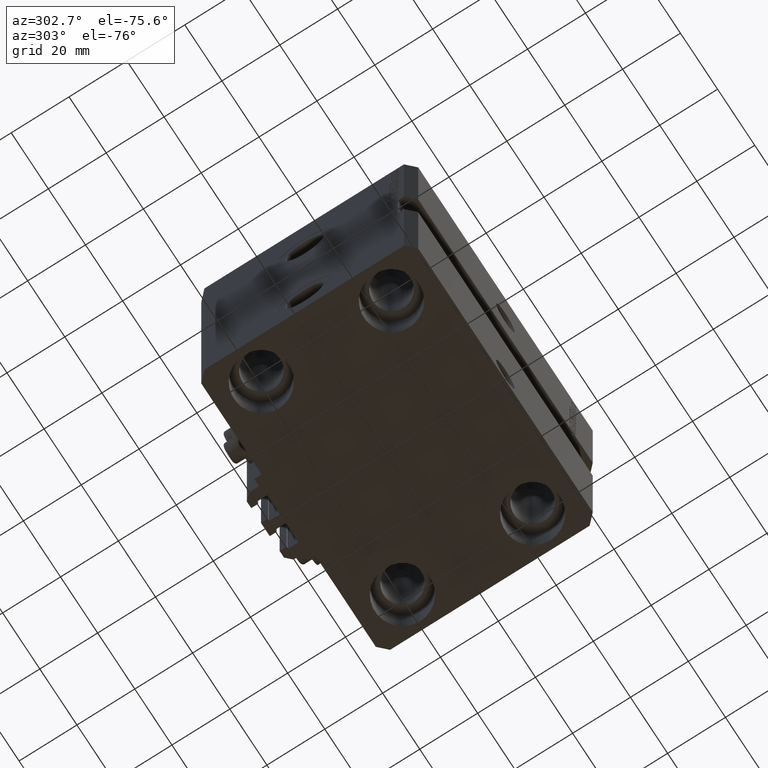
[diagram: clean part render]
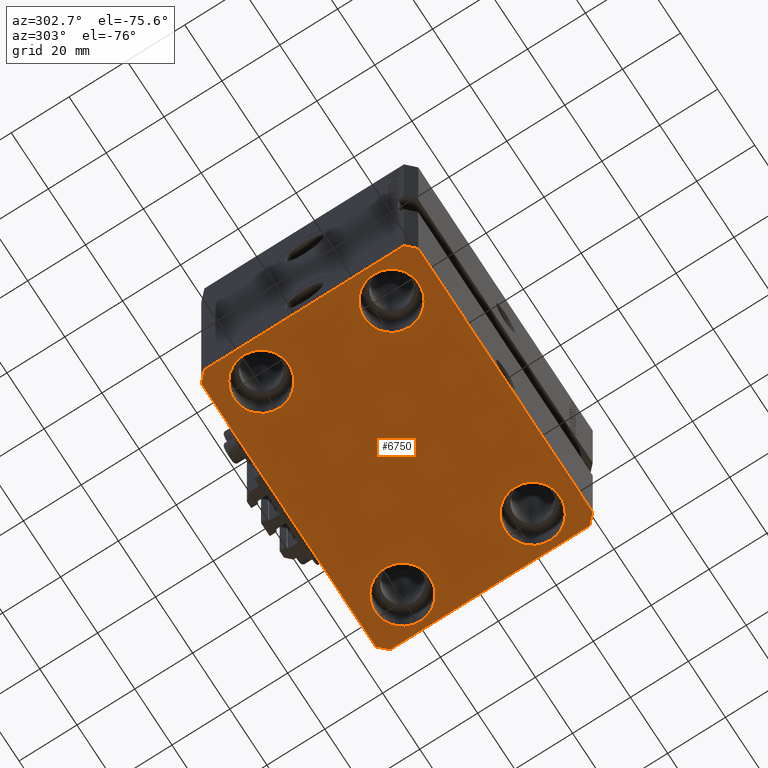
[diagram: same view with one face highlighted and labeled with its STEP entity id]
A machine part, auxiliary view. The second image highlights one B-rep face of the part: STEP entity #6750.
In plain terms, the highlighted planar face has unit normal (0, 0, 1).
Its self-contained STEP definition (entity closure, byte-faithful):
#655 = ORIENTED_EDGE ( 'NONE', *, *, #39909, .F. ) ;
#868 = ORIENTED_EDGE ( 'NONE', *, *, #41271, .F. ) ;
#1432 = ORIENTED_EDGE ( 'NONE', *, *, #23323, .F. ) ;
#1463 = FACE_BOUND ( 'NONE', #26571, .T. ) ;
#2596 = DIRECTION ( 'NONE',  ( 7.441712302741091634E-15, 1.000000000000000000, 0.000000000000000000 ) ) ;
#2833 = ORIENTED_EDGE ( 'NONE', *, *, #27995, .F. ) ;
#3109 = DIRECTION ( 'NONE',  ( 0.7071067811865491270, -0.7071067811865459074, 0.000000000000000000 ) ) ;
#3524 = CARTESIAN_POINT ( 'NONE',  ( 47.50000000000000711, -22.50000000000000000, -95.00000000000000000 ) ) ;
#4291 = EDGE_CURVE ( 'NONE', #23746, #20042, #19200, .T. ) ;
#4619 = CARTESIAN_POINT ( 'NONE',  ( 38.00000000000000711, 22.50000000000001421, -95.00000000000000000 ) ) ;
#5216 = FACE_BOUND ( 'NONE', #42210, .T. ) ;
#5404 = ORIENTED_EDGE ( 'NONE', *, *, #29993, .T. ) ;
#5592 = DIRECTION ( 'NONE',  ( -0.7071067811865483499, -0.7071067811865466846, 0.000000000000000000 ) ) ;
#5658 = CIRCLE ( 'NONE', #18373, 9.500000000000001776 ) ;
#5688 = CARTESIAN_POINT ( 'NONE',  ( 0.000000000000000000, 0.000000000000000000, -95.00000000000000000 ) ) ;
#5899 = VECTOR ( 'NONE', #22565, 1000.000000000000000 ) ;
#6444 = AXIS2_PLACEMENT_3D ( 'NONE', #45047, #7435, #42034 ) ;
#6487 = VERTEX_POINT ( 'NONE', #41123 ) ;
#6658 = EDGE_CURVE ( 'NONE', #23079, #15702, #31893, .T. ) ;
#6750 = ADVANCED_FACE ( 'NONE', ( #1463, #10162, #20843, #5216, #47286 ), #12921, .F. ) ;
#6822 = AXIS2_PLACEMENT_3D ( 'NONE', #19064, #34266, #45744 ) ;
#7085 = CARTESIAN_POINT ( 'NONE',  ( -38.00000000000000711, -22.50000000000000000, -95.00000000000000000 ) ) ;
#7435 = DIRECTION ( 'NONE',  ( -0.000000000000000000, -0.000000000000000000, 1.000000000000000000 ) ) ;
#7656 = LINE ( 'NONE', #37527, #5899 ) ;
#7771 = DIRECTION ( 'NONE',  ( -0.7071067811865361374, 0.7071067811865588970, 0.000000000000000000 ) ) ;
#8279 = VECTOR ( 'NONE', #2596, 1000.000000000000000 ) ;
#9600 = DIRECTION ( 'NONE',  ( 2.011273595335428326E-16, -1.000000000000000000, 0.000000000000000000 ) ) ;
#9979 = EDGE_CURVE ( 'NONE', #15702, #23079, #43133, .T. ) ;
#10162 = FACE_BOUND ( 'NONE', #44221, .T. ) ;
#10317 = VECTOR ( 'NONE', #43055, 1000.000000000000000 ) ;
#10350 = VECTOR ( 'NONE', #9600, 1000.000000000000000 ) ;
#11055 = CARTESIAN_POINT ( 'NONE',  ( -50.00000000000001421, 34.50000000000000000, -95.00000000000000000 ) ) ;
#11080 = DIRECTION ( 'NONE',  ( -0.000000000000000000, -0.000000000000000000, 1.000000000000000000 ) ) ;
#11894 = CARTESIAN_POINT ( 'NONE',  ( -47.00000000000000000, -37.49999999999999289, -95.00000000000000000 ) ) ;
#12188 = EDGE_CURVE ( 'NONE', #13721, #38150, #17050, .T. ) ;
#12738 = EDGE_CURVE ( 'NONE', #18213, #42895, #28979, .T. ) ;
#12766 = ORIENTED_EDGE ( 'NONE', *, *, #27547, .F. ) ;
#12921 = PLANE ( 'NONE',  #43791 ) ;
#13721 = VERTEX_POINT ( 'NONE', #34946 ) ;
#13785 = CARTESIAN_POINT ( 'NONE',  ( 38.00000000000000711, -22.50000000000000000, -95.00000000000000000 ) ) ;
#14306 = CARTESIAN_POINT ( 'NONE',  ( -47.50000000000000711, -22.50000000000000000, -95.00000000000000000 ) ) ;
#14404 = EDGE_CURVE ( 'NONE', #44089, #36975, #38545, .T. ) ;
#14441 = AXIS2_PLACEMENT_3D ( 'NONE', #43928, #39455, #32716 ) ;
#14724 = CIRCLE ( 'NONE', #44138, 9.500000000000001776 ) ;
#15702 = VERTEX_POINT ( 'NONE', #23921 ) ;
#15931 = DIRECTION ( 'NONE',  ( -0.000000000000000000, -0.000000000000000000, 1.000000000000000000 ) ) ;
#16610 = VECTOR ( 'NONE', #31785, 1000.000000000000000 ) ;
#17050 = LINE ( 'NONE', #32236, #8279 ) ;
#17271 = DIRECTION ( 'NONE',  ( 1.000000000000000000, 0.000000000000000000, 0.000000000000000000 ) ) ;
#17483 = VERTEX_POINT ( 'NONE', #32403 ) ;
#17865 = VECTOR ( 'NONE', #3109, 1000.000000000000114 ) ;
#17877 = ORIENTED_EDGE ( 'NONE', *, *, #46036, .T. ) ;
#18213 = VERTEX_POINT ( 'NONE', #36879 ) ;
#18257 = CARTESIAN_POINT ( 'NONE',  ( -38.00000000000000711, 22.50000000000000000, -95.00000000000000000 ) ) ;
#18373 = AXIS2_PLACEMENT_3D ( 'NONE', #13785, #48154, #17271 ) ;
#18473 = CARTESIAN_POINT ( 'NONE',  ( 50.00000000000051870, 34.49999999999995026, -95.00000000000000000 ) ) ;
#18519 = DIRECTION ( 'NONE',  ( -0.000000000000000000, -0.000000000000000000, 1.000000000000000000 ) ) ;
#18598 = VECTOR ( 'NONE', #5592, 1000.000000000000000 ) ;
#19064 = CARTESIAN_POINT ( 'NONE',  ( -38.00000000000000711, 22.50000000000000000, -95.00000000000000000 ) ) ;
#19200 = CIRCLE ( 'NONE', #14441, 9.500000000000001776 ) ;
#19774 = DIRECTION ( 'NONE',  ( 1.000000000000000000, 0.000000000000000000, 0.000000000000000000 ) ) ;
#20042 = VERTEX_POINT ( 'NONE', #3524 ) ;
#20520 = CARTESIAN_POINT ( 'NONE',  ( -47.50000000000000711, 22.50000000000000000, -95.00000000000000000 ) ) ;
#20843 = FACE_BOUND ( 'NONE', #26761, .T. ) ;
#21267 = CARTESIAN_POINT ( 'NONE',  ( -47.00000000000000000, -37.49999999999999289, -95.00000000000000000 ) ) ;
#21737 = CARTESIAN_POINT ( 'NONE',  ( -28.50000000000000355, -22.50000000000000000, -95.00000000000000000 ) ) ;
#22565 = DIRECTION ( 'NONE',  ( -1.000000000000000000, 7.381802025433175941E-17, 0.000000000000000000 ) ) ;
#23079 = VERTEX_POINT ( 'NONE', #30500 ) ;
#23323 = EDGE_CURVE ( 'NONE', #17483, #13721, #34838, .T. ) ;
#23746 = VERTEX_POINT ( 'NONE', #31545 ) ;
#23921 = CARTESIAN_POINT ( 'NONE',  ( 28.50000000000000355, 22.50000000000001421, -95.00000000000000000 ) ) ;
#24062 = ORIENTED_EDGE ( 'NONE', *, *, #6658, .T. ) ;
#24439 = EDGE_CURVE ( 'NONE', #41210, #17483, #38277, .T. ) ;
#25485 = LINE ( 'NONE', #44685, #10350 ) ;
#25654 = CARTESIAN_POINT ( 'NONE',  ( 47.00000000000056843, 37.49999999999999289, -95.00000000000000000 ) ) ;
#26571 = EDGE_LOOP ( 'NONE', ( #47231, #39244 ) ) ;
#26761 = EDGE_LOOP ( 'NONE', ( #46885, #24062 ) ) ;
#27110 = CARTESIAN_POINT ( 'NONE',  ( 47.00000000000000000, -37.50000000000000711, -95.00000000000000000 ) ) ;
#27367 = CARTESIAN_POINT ( 'NONE',  ( -38.00000000000000711, -22.50000000000000000, -95.00000000000000000 ) ) ;
#27547 = EDGE_CURVE ( 'NONE', #42895, #44695, #25485, .T. ) ;
#27995 = EDGE_CURVE ( 'NONE', #38150, #31364, #29939, .T. ) ;
#28979 = LINE ( 'NONE', #39684, #18598 ) ;
#29089 = ORIENTED_EDGE ( 'NONE', *, *, #12188, .F. ) ;
#29794 = AXIS2_PLACEMENT_3D ( 'NONE', #7085, #11080, #41698 ) ;
#29939 = LINE ( 'NONE', #18473, #45382 ) ;
#29993 = EDGE_CURVE ( 'NONE', #20042, #23746, #5658, .T. ) ;
#30441 = AXIS2_PLACEMENT_3D ( 'NONE', #4619, #35699, #19774 ) ;
#30500 = CARTESIAN_POINT ( 'NONE',  ( 47.50000000000000711, 22.50000000000001421, -95.00000000000000000 ) ) ;
#31364 = VERTEX_POINT ( 'NONE', #25654 ) ;
#31545 = CARTESIAN_POINT ( 'NONE',  ( 28.50000000000000355, -22.50000000000000000, -95.00000000000000000 ) ) ;
#31785 = DIRECTION ( 'NONE',  ( 1.000000000000000000, -1.476360405086644309E-16, 0.000000000000000000 ) ) ;
#31836 = DIRECTION ( 'NONE',  ( 1.000000000000000000, 0.000000000000000000, -0.000000000000000000 ) ) ;
#31893 = CIRCLE ( 'NONE', #6444, 9.500000000000001776 ) ;
#32236 = CARTESIAN_POINT ( 'NONE',  ( 50.00000000000000000, -34.50000000000000711, -95.00000000000000000 ) ) ;
#32403 = CARTESIAN_POINT ( 'NONE',  ( 47.00000000000000000, -37.50000000000000711, -95.00000000000000000 ) ) ;
#32716 = DIRECTION ( 'NONE',  ( 1.000000000000000000, 0.000000000000000000, 0.000000000000000000 ) ) ;
#33267 = CIRCLE ( 'NONE', #38039, 9.500000000000001776 ) ;
#33740 = CARTESIAN_POINT ( 'NONE',  ( -50.00000000000000000, -34.50000000000000000, -95.00000000000000000 ) ) ;
#34266 = DIRECTION ( 'NONE',  ( -0.000000000000000000, -0.000000000000000000, 1.000000000000000000 ) ) ;
#34838 = LINE ( 'NONE', #27110, #10317 ) ;
#34946 = CARTESIAN_POINT ( 'NONE',  ( 50.00000000000000000, -34.50000000000000711, -95.00000000000000000 ) ) ;
#35694 = ORIENTED_EDGE ( 'NONE', *, *, #24439, .F. ) ;
#35699 = DIRECTION ( 'NONE',  ( -0.000000000000000000, -0.000000000000000000, 1.000000000000000000 ) ) ;
#36239 = ORIENTED_EDGE ( 'NONE', *, *, #43871, .T. ) ;
#36879 = CARTESIAN_POINT ( 'NONE',  ( -47.00000000000001421, 37.50000000000000000, -95.00000000000000000 ) ) ;
#36975 = VERTEX_POINT ( 'NONE', #14306 ) ;
#37029 = CIRCLE ( 'NONE', #6822, 9.500000000000001776 ) ;
#37443 = DIRECTION ( 'NONE',  ( 1.000000000000000000, 0.000000000000000000, 0.000000000000000000 ) ) ;
#37493 = EDGE_LOOP ( 'NONE', ( #655, #2833, #29089, #1432, #35694, #868, #12766, #43310 ) ) ;
#37527 = CARTESIAN_POINT ( 'NONE',  ( 47.00000000000056843, 37.49999999999999289, -95.00000000000000000 ) ) ;
#37724 = LINE ( 'NONE', #33740, #17865 ) ;
#38039 = AXIS2_PLACEMENT_3D ( 'NONE', #18257, #18519, #37443 ) ;
#38150 = VERTEX_POINT ( 'NONE', #46621 ) ;
#38277 = LINE ( 'NONE', #11894, #16610 ) ;
#38545 = CIRCLE ( 'NONE', #29794, 9.500000000000001776 ) ;
#39244 = ORIENTED_EDGE ( 'NONE', *, *, #14404, .T. ) ;
#39455 = DIRECTION ( 'NONE',  ( -0.000000000000000000, -0.000000000000000000, 1.000000000000000000 ) ) ;
#39684 = CARTESIAN_POINT ( 'NONE',  ( -47.00000000000001421, 37.50000000000000000, -95.00000000000000000 ) ) ;
#39909 = EDGE_CURVE ( 'NONE', #31364, #18213, #7656, .T. ) ;
#41123 = CARTESIAN_POINT ( 'NONE',  ( -28.50000000000000355, 22.50000000000000000, -95.00000000000000000 ) ) ;
#41210 = VERTEX_POINT ( 'NONE', #21267 ) ;
#41271 = EDGE_CURVE ( 'NONE', #44695, #41210, #37724, .T. ) ;
#41698 = DIRECTION ( 'NONE',  ( 1.000000000000000000, 0.000000000000000000, 0.000000000000000000 ) ) ;
#42034 = DIRECTION ( 'NONE',  ( 1.000000000000000000, 0.000000000000000000, 0.000000000000000000 ) ) ;
#42065 = EDGE_CURVE ( 'NONE', #36975, #44089, #14724, .T. ) ;
#42210 = EDGE_LOOP ( 'NONE', ( #17877, #36239 ) ) ;
#42575 = DIRECTION ( 'NONE',  ( 1.000000000000000000, 0.000000000000000000, 0.000000000000000000 ) ) ;
#42895 = VERTEX_POINT ( 'NONE', #11055 ) ;
#43055 = DIRECTION ( 'NONE',  ( 0.7071067811865483499, 0.7071067811865466846, 0.000000000000000000 ) ) ;
#43133 = CIRCLE ( 'NONE', #30441, 9.500000000000001776 ) ;
#43310 = ORIENTED_EDGE ( 'NONE', *, *, #12738, .F. ) ;
#43791 = AXIS2_PLACEMENT_3D ( 'NONE', #5688, #48015, #31836 ) ;
#43871 = EDGE_CURVE ( 'NONE', #6487, #46834, #37029, .T. ) ;
#43928 = CARTESIAN_POINT ( 'NONE',  ( 38.00000000000000711, -22.50000000000000000, -95.00000000000000000 ) ) ;
#44089 = VERTEX_POINT ( 'NONE', #21737 ) ;
#44138 = AXIS2_PLACEMENT_3D ( 'NONE', #27367, #15931, #42575 ) ;
#44221 = EDGE_LOOP ( 'NONE', ( #48215, #5404 ) ) ;
#44685 = CARTESIAN_POINT ( 'NONE',  ( -50.00000000000001421, 34.50000000000000000, -95.00000000000000000 ) ) ;
#44695 = VERTEX_POINT ( 'NONE', #45252 ) ;
#45047 = CARTESIAN_POINT ( 'NONE',  ( 38.00000000000000711, 22.50000000000001421, -95.00000000000000000 ) ) ;
#45252 = CARTESIAN_POINT ( 'NONE',  ( -50.00000000000000000, -34.50000000000000000, -95.00000000000000000 ) ) ;
#45382 = VECTOR ( 'NONE', #7771, 1000.000000000000114 ) ;
#45744 = DIRECTION ( 'NONE',  ( 1.000000000000000000, 0.000000000000000000, 0.000000000000000000 ) ) ;
#46036 = EDGE_CURVE ( 'NONE', #46834, #6487, #33267, .T. ) ;
#46621 = CARTESIAN_POINT ( 'NONE',  ( 50.00000000000051870, 34.49999999999995026, -95.00000000000000000 ) ) ;
#46834 = VERTEX_POINT ( 'NONE', #20520 ) ;
#46885 = ORIENTED_EDGE ( 'NONE', *, *, #9979, .T. ) ;
#47231 = ORIENTED_EDGE ( 'NONE', *, *, #42065, .T. ) ;
#47286 = FACE_OUTER_BOUND ( 'NONE', #37493, .T. ) ;
#48015 = DIRECTION ( 'NONE',  ( 0.000000000000000000, 0.000000000000000000, 1.000000000000000000 ) ) ;
#48154 = DIRECTION ( 'NONE',  ( -0.000000000000000000, -0.000000000000000000, 1.000000000000000000 ) ) ;
#48215 = ORIENTED_EDGE ( 'NONE', *, *, #4291, .T. ) ;